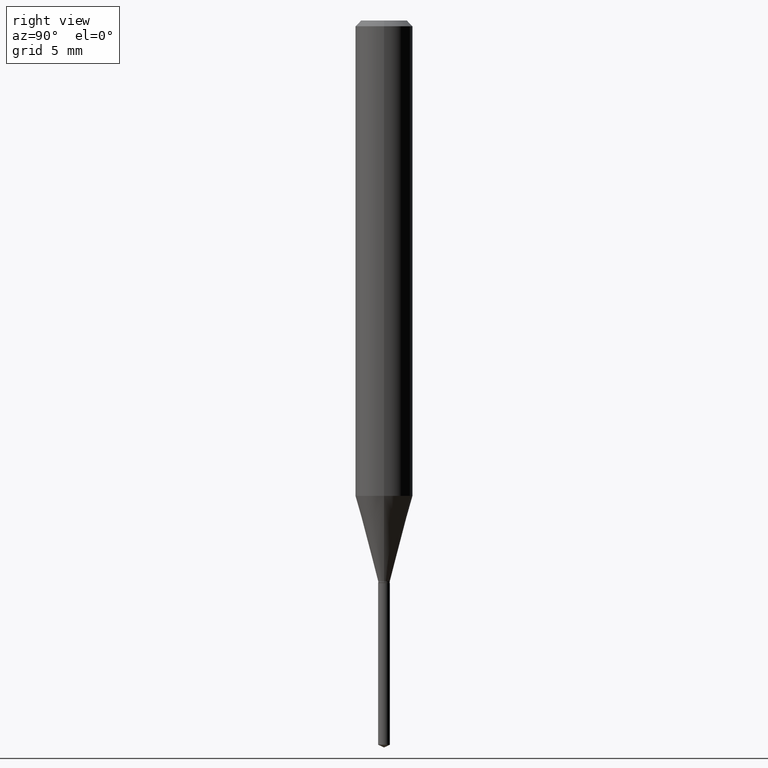
[diagram: clean part render]
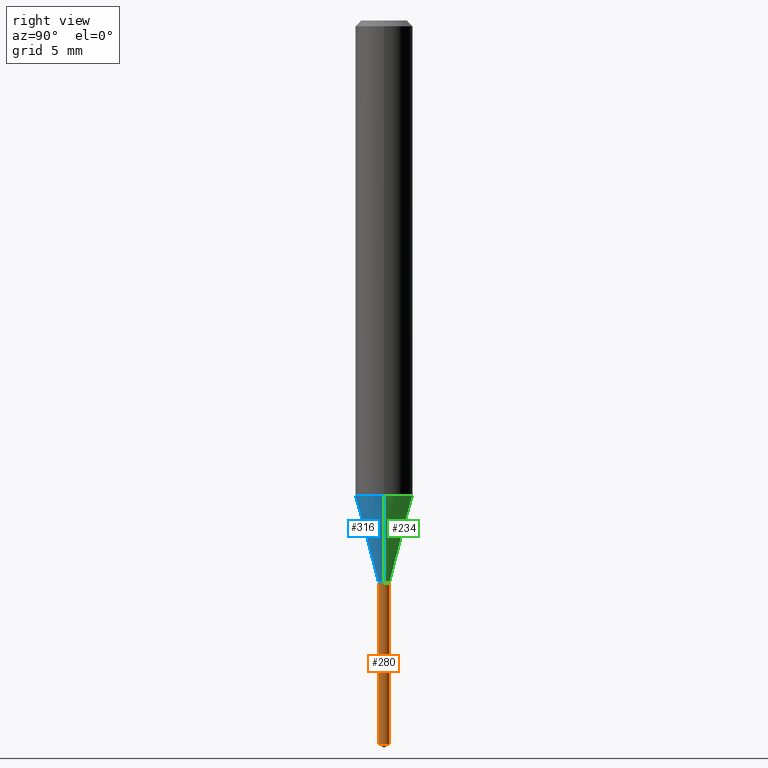
[diagram: same view with three faces highlighted in distinct colors, each labeled with its STEP entity id]
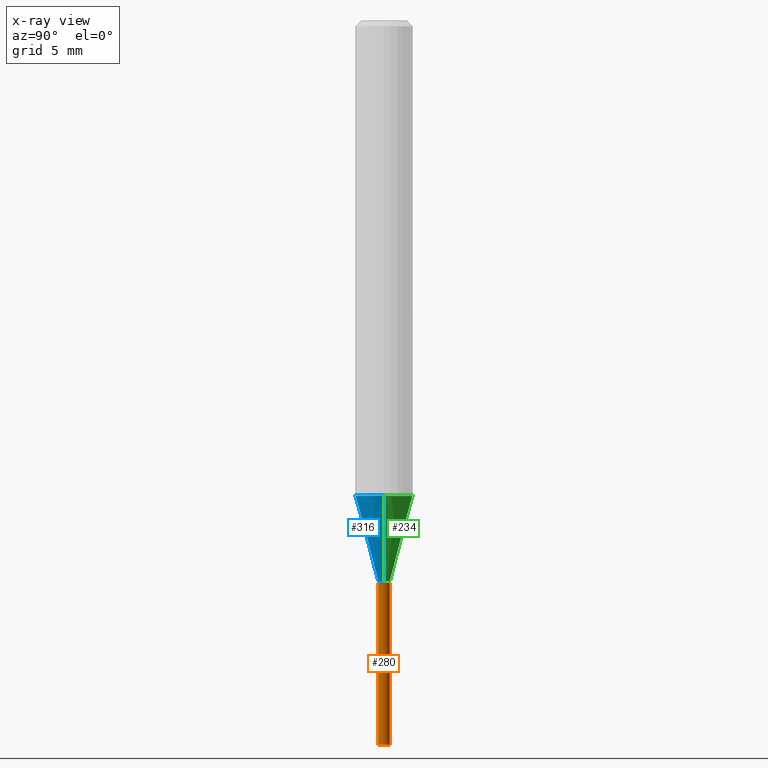
[diagram: x-ray of the same camera — body ghosted, the three highlighted faces saturated]
A machine part, right view with three faces highlighted in distinct colors.
The next image is the same camera in x-ray (body ghosted, the three faces saturated) — at least one of them is partly hidden behind the body in this view.
Their STEP definitions:

[orange] entity #280 — the highlighted cylindrical surface (edge-blend (fillet) strip) has radius 0.3048 mm, axis along (-0, 0, 1).
#23 = DIRECTION ( 'NONE',  ( -6.982962677686265922E-15, -1.000000000000000000, 0.000000000000000000 ) ) ;
#32 = CARTESIAN_POINT ( 'NONE',  ( -8.379555213220689077E-17, -0.01200000000000404389, -1.157499999999999973 ) ) ;
#37 = CARTESIAN_POINT ( 'NONE',  ( 8.526512829124853355E-17, 0.01199999999999595661, -1.157499999999999973 ) ) ;
#68 = CARTESIAN_POINT ( 'NONE',  ( 3.642126862280647887E-29, -5.208156397548526055E-15, -1.490504308102140074 ) ) ;
#90 = CARTESIAN_POINT ( 'NONE',  ( 8.526512829124033679E-17, 0.01199999999999596008, -1.157499999999999973 ) ) ;
#93 = VERTEX_POINT ( 'NONE', #200 ) ;
#104 = CARTESIAN_POINT ( 'NONE',  ( 2.830630143159295633E-29, -4.041389649710940900E-15, -1.157499999999999973 ) ) ;
#135 = AXIS2_PLACEMENT_3D ( 'NONE', #104, #218, #23 ) ;
#147 = DIRECTION ( 'NONE',  ( -6.982962677686265922E-15, -1.000000000000000000, 0.000000000000000000 ) ) ;
#151 = EDGE_CURVE ( 'NONE', #93, #464, #195, .T. ) ;
#178 = EDGE_CURVE ( 'NONE', #201, #464, #427, .T. ) ;
#195 = CIRCLE ( 'NONE', #474, 0.01200000000000000025 ) ;
#200 = CARTESIAN_POINT ( 'NONE',  ( -8.379555213220687845E-17, -0.01200000000000404216, -1.157499999999999973 ) ) ;
#201 = VERTEX_POINT ( 'NONE', #407 ) ;
#218 = DIRECTION ( 'NONE',  ( -2.436895557736890355E-29, 3.503758718580032420E-15, 1.000000000000000000 ) ) ;
#220 = CARTESIAN_POINT ( 'NONE',  ( -8.379555213219876797E-17, -0.01200000000000520789, -1.490504308102140074 ) ) ;
#225 = CYLINDRICAL_SURFACE ( 'NONE', #135, 0.01200000000000000198 ) ;
#233 = ORIENTED_EDGE ( 'NONE', *, *, #178, .T. ) ;
#236 = DIRECTION ( 'NONE',  ( -6.982962677686265922E-15, -1.000000000000000000, 0.000000000000000000 ) ) ;
#271 = ORIENTED_EDGE ( 'NONE', *, *, #446, .T. ) ;
#280 = ADVANCED_FACE ( 'NONE', ( #443 ), #225, .T. ) ;
#300 = CIRCLE ( 'NONE', #449, 0.01200000000000000372 ) ;
#303 = VERTEX_POINT ( 'NONE', #220 ) ;
#307 = EDGE_CURVE ( 'NONE', #303, #93, #368, .T. ) ;
#325 = EDGE_LOOP ( 'NONE', ( #271, #233, #344, #399 ) ) ;
#330 = DIRECTION ( 'NONE',  ( -2.436895557736890355E-29, 3.503758718580032420E-15, 1.000000000000000000 ) ) ;
#344 = ORIENTED_EDGE ( 'NONE', *, *, #151, .F. ) ;
#355 = DIRECTION ( 'NONE',  ( -2.436895557736890074E-29, 3.503758718580032420E-15, 1.000000000000000000 ) ) ;
#368 = LINE ( 'NONE', #32, #416 ) ;
#399 = ORIENTED_EDGE ( 'NONE', *, *, #307, .F. ) ;
#403 = VECTOR ( 'NONE', #355, 39.37007874015748143 ) ;
#407 = CARTESIAN_POINT ( 'NONE',  ( 8.526512829124844727E-17, 0.01199999999999478914, -1.490504308102140074 ) ) ;
#416 = VECTOR ( 'NONE', #481, 39.37007874015748143 ) ;
#424 = DIRECTION ( 'NONE',  ( -2.436895557736890355E-29, 3.503758718580032420E-15, 1.000000000000000000 ) ) ;
#427 = LINE ( 'NONE', #90, #403 ) ;
#443 = FACE_OUTER_BOUND ( 'NONE', #325, .T. ) ;
#446 = EDGE_CURVE ( 'NONE', #303, #201, #300, .T. ) ;
#449 = AXIS2_PLACEMENT_3D ( 'NONE', #68, #330, #147 ) ;
#453 = CARTESIAN_POINT ( 'NONE',  ( 2.830630143159295633E-29, -4.041389649710940900E-15, -1.157499999999999973 ) ) ;
#464 = VERTEX_POINT ( 'NONE', #37 ) ;
#474 = AXIS2_PLACEMENT_3D ( 'NONE', #453, #424, #236 ) ;
#481 = DIRECTION ( 'NONE',  ( -2.436895557736890074E-29, 3.503758718580032420E-15, 1.000000000000000000 ) ) ;

[blue] entity #316 — the highlighted conical surface has half-angle 15 deg.
#10 = EDGE_LOOP ( 'NONE', ( #139, #145, #66, #182 ) ) ;
#26 = LINE ( 'NONE', #333, #141 ) ;
#36 = DIRECTION ( 'NONE',  ( -2.445468806185136597E-29, 3.491481338843145583E-15, 1.000000000000000000 ) ) ;
#44 = DIRECTION ( 'NONE',  ( 1.000000000000000000, -6.982962677686265133E-15, 0.000000000000000000 ) ) ;
#66 = ORIENTED_EDGE ( 'NONE', *, *, #301, .T. ) ;
#67 = DIRECTION ( 'NONE',  ( 0.2588190451025213501, 1.565188264969621968E-15, 0.9659258262890682012 ) ) ;
#80 = VECTOR ( 'NONE', #459, 39.37007874015747433 ) ;
#82 = CARTESIAN_POINT ( 'NONE',  ( 0.01200000000000000025, -4.112615869023340613E-15, -1.153899999999999926 ) ) ;
#126 = CARTESIAN_POINT ( 'NONE',  ( -0.01200000000000000025, -3.943555188599893977E-15, -1.153899999999999926 ) ) ;
#129 = LINE ( 'NONE', #126, #80 ) ;
#134 = VERTEX_POINT ( 'NONE', #82 ) ;
#139 = ORIENTED_EDGE ( 'NONE', *, *, #323, .F. ) ;
#141 = VECTOR ( 'NONE', #67, 39.37007874015747433 ) ;
#145 = ORIENTED_EDGE ( 'NONE', *, *, #287, .T. ) ;
#146 = FACE_OUTER_BOUND ( 'NONE', #10, .T. ) ;
#179 = DIRECTION ( 'NONE',  ( -2.445468806185136597E-29, 3.491481338843145583E-15, 1.000000000000000000 ) ) ;
#182 = ORIENTED_EDGE ( 'NONE', *, *, #412, .F. ) ;
#191 = AXIS2_PLACEMENT_3D ( 'NONE', #283, #432, #44 ) ;
#222 = CARTESIAN_POINT ( 'NONE',  ( -0.01200000000000000025, -3.948966984675101032E-15, -1.153899999999999926 ) ) ;
#241 = VERTEX_POINT ( 'NONE', #404 ) ;
#283 = CARTESIAN_POINT ( 'NONE',  ( 2.392419274614015052E-29, -3.415740667342255864E-15, -0.9783070095038842728 ) ) ;
#287 = EDGE_CURVE ( 'NONE', #473, #134, #292, .T. ) ;
#292 = CIRCLE ( 'NONE', #343, 0.01200000000000000025 ) ;
#301 = EDGE_CURVE ( 'NONE', #134, #241, #26, .T. ) ;
#316 = ADVANCED_FACE ( 'NONE', ( #146 ), #475, .T. ) ;
#323 = EDGE_CURVE ( 'NONE', #473, #428, #129, .T. ) ;
#329 = DIRECTION ( 'NONE',  ( 1.000000000000000000, -6.982962677686251722E-15, 0.000000000000000000 ) ) ;
#333 = CARTESIAN_POINT ( 'NONE',  ( 0.01200000000000000025, -4.112615869023340613E-15, -1.153899999999999926 ) ) ;
#338 = DIRECTION ( 'NONE',  ( 1.000000000000000000, -6.982962677686251722E-15, 0.000000000000000000 ) ) ;
#343 = AXIS2_PLACEMENT_3D ( 'NONE', #361, #179, #329 ) ;
#349 = CARTESIAN_POINT ( 'NONE',  ( -0.05905000000000011628, -2.996165181875915977E-15, -0.9783070095038842728 ) ) ;
#360 = CIRCLE ( 'NONE', #191, 0.05905000000000013016 ) ;
#361 = CARTESIAN_POINT ( 'NONE',  ( 2.821826455457028920E-29, -4.028820316891105286E-15, -1.153899999999999926 ) ) ;
#372 = CARTESIAN_POINT ( 'NONE',  ( 2.821826455457028920E-29, -4.028820316891105286E-15, -1.153899999999999926 ) ) ;
#404 = CARTESIAN_POINT ( 'NONE',  ( 0.05905000000000011628, -3.828084613459630390E-15, -0.9783070095038842728 ) ) ;
#412 = EDGE_CURVE ( 'NONE', #428, #241, #360, .T. ) ;
#428 = VERTEX_POINT ( 'NONE', #349 ) ;
#432 = DIRECTION ( 'NONE',  ( -2.445468806185136597E-29, 3.491481338843145583E-15, 1.000000000000000000 ) ) ;
#459 = DIRECTION ( 'NONE',  ( -0.2588190451025213501, 5.211531920934551042E-15, 0.9659258262890682012 ) ) ;
#473 = VERTEX_POINT ( 'NONE', #222 ) ;
#475 = CONICAL_SURFACE ( 'NONE', #489, 0.01200000000000000025, 0.2617993877991500740 ) ;
#489 = AXIS2_PLACEMENT_3D ( 'NONE', #372, #36, #338 ) ;

[green] entity #234 — the highlighted conical surface has half-angle 15 deg.
#20 = ORIENTED_EDGE ( 'NONE', *, *, #65, .F. ) ;
#26 = LINE ( 'NONE', #333, #141 ) ;
#30 = AXIS2_PLACEMENT_3D ( 'NONE', #85, #238, #212 ) ;
#65 = EDGE_CURVE ( 'NONE', #241, #428, #440, .T. ) ;
#67 = DIRECTION ( 'NONE',  ( 0.2588190451025213501, 1.565188264969621968E-15, 0.9659258262890682012 ) ) ;
#72 = DIRECTION ( 'NONE',  ( 1.000000000000000000, -6.982962677686251722E-15, 0.000000000000000000 ) ) ;
#80 = VECTOR ( 'NONE', #459, 39.37007874015747433 ) ;
#82 = CARTESIAN_POINT ( 'NONE',  ( 0.01200000000000000025, -4.112615869023340613E-15, -1.153899999999999926 ) ) ;
#85 = CARTESIAN_POINT ( 'NONE',  ( 2.821826455457028920E-29, -4.028820316891105286E-15, -1.153899999999999926 ) ) ;
#101 = CONICAL_SURFACE ( 'NONE', #381, 0.01200000000000000025, 0.2617993877991500740 ) ;
#107 = CARTESIAN_POINT ( 'NONE',  ( 2.821826455457028920E-29, -4.028820316891105286E-15, -1.153899999999999926 ) ) ;
#118 = CARTESIAN_POINT ( 'NONE',  ( 2.392419274614015052E-29, -3.415740667342255864E-15, -0.9783070095038842728 ) ) ;
#125 = ORIENTED_EDGE ( 'NONE', *, *, #323, .T. ) ;
#126 = CARTESIAN_POINT ( 'NONE',  ( -0.01200000000000000025, -3.943555188599893977E-15, -1.153899999999999926 ) ) ;
#129 = LINE ( 'NONE', #126, #80 ) ;
#134 = VERTEX_POINT ( 'NONE', #82 ) ;
#141 = VECTOR ( 'NONE', #67, 39.37007874015747433 ) ;
#160 = AXIS2_PLACEMENT_3D ( 'NONE', #118, #247, #455 ) ;
#181 = FACE_OUTER_BOUND ( 'NONE', #466, .T. ) ;
#212 = DIRECTION ( 'NONE',  ( 1.000000000000000000, -6.982962677686251722E-15, 0.000000000000000000 ) ) ;
#222 = CARTESIAN_POINT ( 'NONE',  ( -0.01200000000000000025, -3.948966984675101032E-15, -1.153899999999999926 ) ) ;
#234 = ADVANCED_FACE ( 'NONE', ( #181 ), #101, .T. ) ;
#238 = DIRECTION ( 'NONE',  ( -2.445468806185136597E-29, 3.491481338843145583E-15, 1.000000000000000000 ) ) ;
#241 = VERTEX_POINT ( 'NONE', #404 ) ;
#247 = DIRECTION ( 'NONE',  ( -2.445468806185136597E-29, 3.491481338843145583E-15, 1.000000000000000000 ) ) ;
#261 = DIRECTION ( 'NONE',  ( -2.445468806185136597E-29, 3.491481338843145583E-15, 1.000000000000000000 ) ) ;
#276 = ORIENTED_EDGE ( 'NONE', *, *, #396, .T. ) ;
#285 = CIRCLE ( 'NONE', #30, 0.01200000000000000025 ) ;
#301 = EDGE_CURVE ( 'NONE', #134, #241, #26, .T. ) ;
#323 = EDGE_CURVE ( 'NONE', #473, #428, #129, .T. ) ;
#333 = CARTESIAN_POINT ( 'NONE',  ( 0.01200000000000000025, -4.112615869023340613E-15, -1.153899999999999926 ) ) ;
#348 = ORIENTED_EDGE ( 'NONE', *, *, #301, .F. ) ;
#349 = CARTESIAN_POINT ( 'NONE',  ( -0.05905000000000011628, -2.996165181875915977E-15, -0.9783070095038842728 ) ) ;
#381 = AXIS2_PLACEMENT_3D ( 'NONE', #107, #261, #72 ) ;
#396 = EDGE_CURVE ( 'NONE', #134, #473, #285, .T. ) ;
#404 = CARTESIAN_POINT ( 'NONE',  ( 0.05905000000000011628, -3.828084613459630390E-15, -0.9783070095038842728 ) ) ;
#428 = VERTEX_POINT ( 'NONE', #349 ) ;
#440 = CIRCLE ( 'NONE', #160, 0.05905000000000013016 ) ;
#455 = DIRECTION ( 'NONE',  ( 1.000000000000000000, -6.982962677686265133E-15, 0.000000000000000000 ) ) ;
#459 = DIRECTION ( 'NONE',  ( -0.2588190451025213501, 5.211531920934551042E-15, 0.9659258262890682012 ) ) ;
#466 = EDGE_LOOP ( 'NONE', ( #276, #125, #20, #348 ) ) ;
#473 = VERTEX_POINT ( 'NONE', #222 ) ;